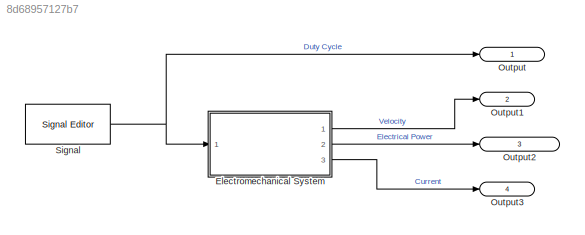
MODEL slx_8d68957127b7
KIND model
CONFIG AbsTol = auto
CONFIG EnableMultiTasking = off
CONFIG FixedStep = auto
CONFIG MaxStep = auto
CONFIG MinStep = auto
CONFIG RelTol = 1e-6
CONFIG SampleTimeConstraint = Unconstrained
CONFIG SolverName = VariableStepAuto
CONFIG StartTime = 0.0
CONFIG StopTime = 10.0
WORKSPACE source: external: MAT-File  (data not in archive)
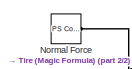
[diagram: Electromechanical System - part 1/2, top right region]
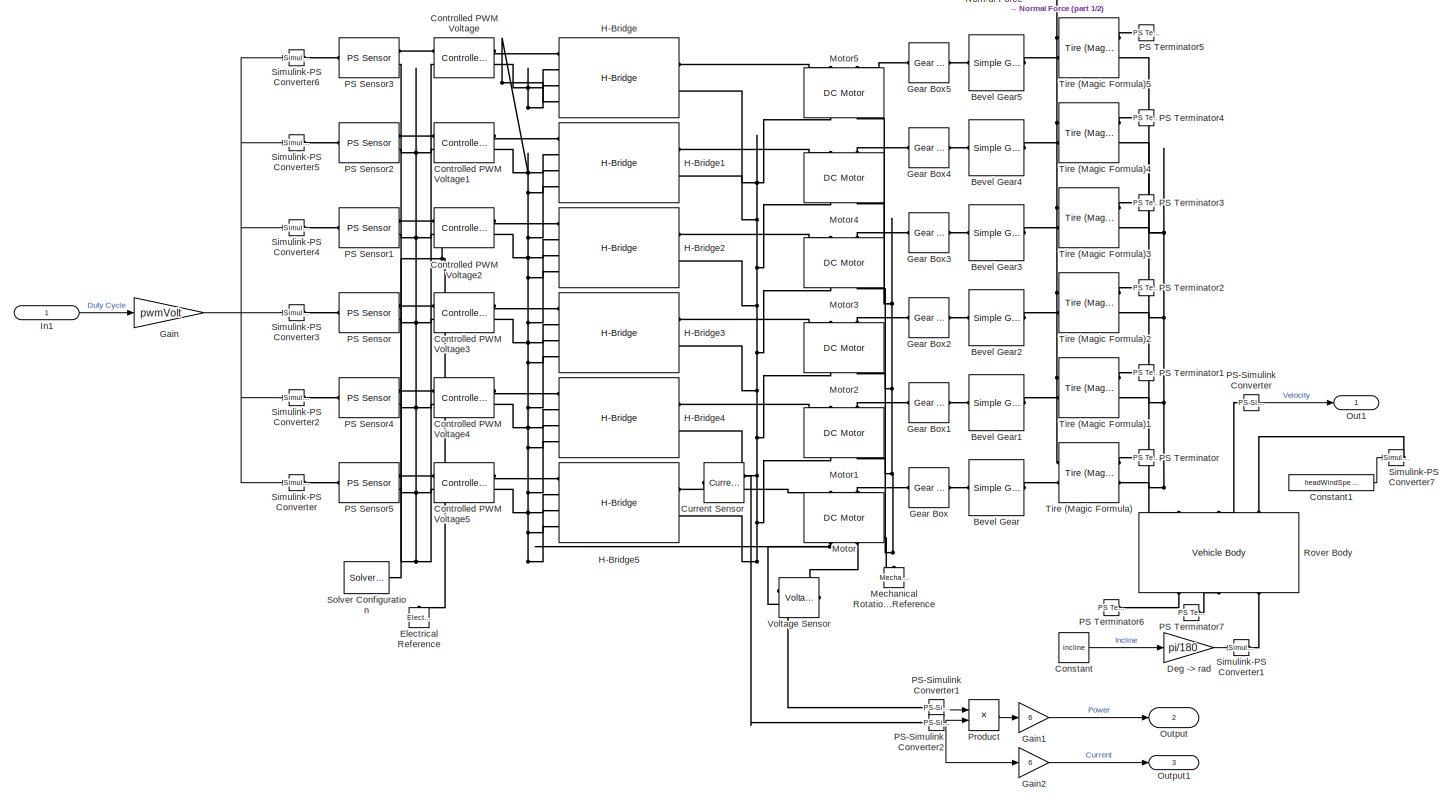
[diagram: Electromechanical System - part 2/2, most of the canvas]
BLOCK [SubSystem] Electromechanical System
  Ports = [1, 3]
  RequestExecContextInheritance = off
BLOCK [Reference] Electromechanical System/ Gear Box  REF=fl_lib/Mechanical/Mechanisms/Gear Box
  Ports = [0, 0, 0, 0, 0, 1, 1]
  SourceBlock = fl_lib/Mechanical/Mechanisms/Gear Box
  SourceProductBaseCode = SS
  SourceType = Gear Box
BLOCK [Reference] Electromechanical System/ Gear Box1  REF=fl_lib/Mechanical/Mechanisms/Gear Box
  Ports = [0, 0, 0, 0, 0, 1, 1]
  SourceBlock = fl_lib/Mechanical/Mechanisms/Gear Box
  SourceProductBaseCode = SS
  SourceType = Gear Box
BLOCK [Reference] Electromechanical System/ Gear Box2  REF=fl_lib/Mechanical/Mechanisms/Gear Box
  Ports = [0, 0, 0, 0, 0, 1, 1]
  SourceBlock = fl_lib/Mechanical/Mechanisms/Gear Box
  SourceProductBaseCode = SS
  SourceType = Gear Box
BLOCK [Reference] Electromechanical System/ Gear Box3  REF=fl_lib/Mechanical/Mechanisms/Gear Box
  Ports = [0, 0, 0, 0, 0, 1, 1]
  SourceBlock = fl_lib/Mechanical/Mechanisms/Gear Box
  SourceProductBaseCode = SS
  SourceType = Gear Box
BLOCK [Reference] Electromechanical System/ Gear Box4  REF=fl_lib/Mechanical/Mechanisms/Gear Box
  Ports = [0, 0, 0, 0, 0, 1, 1]
  SourceBlock = fl_lib/Mechanical/Mechanisms/Gear Box
  SourceProductBaseCode = SS
  SourceType = Gear Box
BLOCK [Reference] Electromechanical System/ Gear Box5  REF=fl_lib/Mechanical/Mechanisms/Gear Box
  Ports = [0, 0, 0, 0, 0, 1, 1]
  SourceBlock = fl_lib/Mechanical/Mechanisms/Gear Box
  SourceProductBaseCode = SS
  SourceType = Gear Box
BLOCK [Reference] Electromechanical System/Bevel Gear  REF=sdl_lib/Gears/Simple Gear
  Ports = [0, 0, 0, 0, 0, 1, 1]
  SourceBlock = sdl_lib/Gears/Simple Gear
  SourceProductBaseCode = LD
  SourceType = Simple Gear
BLOCK [Reference] Electromechanical System/Bevel Gear1  REF=sdl_lib/Gears/Simple Gear
  Ports = [0, 0, 0, 0, 0, 1, 1]
  SourceBlock = sdl_lib/Gears/Simple Gear
  SourceProductBaseCode = LD
  SourceType = Simple Gear
BLOCK [Reference] Electromechanical System/Bevel Gear2  REF=sdl_lib/Gears/Simple Gear
  Ports = [0, 0, 0, 0, 0, 1, 1]
  SourceBlock = sdl_lib/Gears/Simple Gear
  SourceProductBaseCode = LD
  SourceType = Simple Gear
BLOCK [Reference] Electromechanical System/Bevel Gear3  REF=sdl_lib/Gears/Simple Gear
  Ports = [0, 0, 0, 0, 0, 1, 1]
  SourceBlock = sdl_lib/Gears/Simple Gear
  SourceProductBaseCode = LD
  SourceType = Simple Gear
BLOCK [Reference] Electromechanical System/Bevel Gear4  REF=sdl_lib/Gears/Simple Gear
  Ports = [0, 0, 0, 0, 0, 1, 1]
  SourceBlock = sdl_lib/Gears/Simple Gear
  SourceProductBaseCode = LD
  SourceType = Simple Gear
BLOCK [Reference] Electromechanical System/Bevel Gear5  REF=sdl_lib/Gears/Simple Gear
  Ports = [0, 0, 0, 0, 0, 1, 1]
  SourceBlock = sdl_lib/Gears/Simple Gear
  SourceProductBaseCode = LD
  SourceType = Simple Gear
BLOCK [Constant] Electromechanical System/Constant
  Value = incline
BLOCK [Constant] Electromechanical System/Constant1
  Value = headWindSpeed
BLOCK [Reference] Electromechanical System/Controlled PWM Voltage  REF=ee_lib/Integrated Circuits/Controlled PWM
Voltage
  Ports = [0, 0, 0, 0, 0, 2, 2]
  SourceBlock = ee_lib/Integrated Circuits/Controlled PWM\nVoltage
  SourceProductBaseCode = PS
  SourceType = Controlled PWM\nVoltage
BLOCK [Reference] Electromechanical System/Controlled PWM Voltage1  REF=ee_lib/Integrated Circuits/Controlled PWM
Voltage
  Ports = [0, 0, 0, 0, 0, 2, 2]
  SourceBlock = ee_lib/Integrated Circuits/Controlled PWM\nVoltage
  SourceProductBaseCode = PS
  SourceType = Controlled PWM\nVoltage
BLOCK [Reference] Electromechanical System/Controlled PWM Voltage2  REF=ee_lib/Integrated Circuits/Controlled PWM
Voltage
  Ports = [0, 0, 0, 0, 0, 2, 2]
  SourceBlock = ee_lib/Integrated Circuits/Controlled PWM\nVoltage
  SourceProductBaseCode = PS
  SourceType = Controlled PWM\nVoltage
BLOCK [Reference] Electromechanical System/Controlled PWM Voltage3  REF=ee_lib/Integrated Circuits/Controlled PWM
Voltage
  Ports = [0, 0, 0, 0, 0, 2, 2]
  SourceBlock = ee_lib/Integrated Circuits/Controlled PWM\nVoltage
  SourceProductBaseCode = PS
  SourceType = Controlled PWM\nVoltage
BLOCK [Reference] Electromechanical System/Controlled PWM Voltage4  REF=ee_lib/Integrated Circuits/Controlled PWM
Voltage
  Ports = [0, 0, 0, 0, 0, 2, 2]
  SourceBlock = ee_lib/Integrated Circuits/Controlled PWM\nVoltage
  SourceProductBaseCode = PS
  SourceType = Controlled PWM\nVoltage
BLOCK [Reference] Electromechanical System/Controlled PWM Voltage5  REF=ee_lib/Integrated Circuits/Controlled PWM
Voltage
  Ports = [0, 0, 0, 0, 0, 2, 2]
  SourceBlock = ee_lib/Integrated Circuits/Controlled PWM\nVoltage
  SourceProductBaseCode = PS
  SourceType = Controlled PWM\nVoltage
BLOCK [Reference] Electromechanical System/Current Sensor  REF=fl_lib/Electrical/Electrical Sensors/Current Sensor
  Ports = [0, 0, 0, 0, 0, 1, 2]
  SourceBlock = fl_lib/Electrical/Electrical Sensors/Current Sensor
  SourceProductBaseCode = SS
  SourceType = Current Sensor
BLOCK [Gain] Electromechanical System/Deg -> rad
  Gain = pi/180
BLOCK [Reference] Electromechanical System/Electrical Reference  REF=fl_lib/Electrical/Electrical Elements/Electrical Reference
  NameLocation = right
  Ports = [0, 0, 0, 0, 0, 1]
  SourceBlock = fl_lib/Electrical/Electrical Elements/Electrical Reference
  SourceProductBaseCode = SS
  SourceType = Electrical Reference
BLOCK [Gain] Electromechanical System/Gain
  Gain = pwmVolt
BLOCK [Gain] Electromechanical System/Gain1
  Gain = 6
BLOCK [Gain] Electromechanical System/Gain2
  Gain = 6
BLOCK [Reference] Electromechanical System/H-Bridge  REF=ee_lib/Semiconductors &
Converters/Converters/H-Bridge
  Ports = [0, 0, 0, 0, 0, 4, 2]
  SourceBlock = ee_lib/Semiconductors &\nConverters/Converters/H-Bridge
  SourceProductBaseCode = PS
  SourceType = H-Bridge
BLOCK [Reference] Electromechanical System/H-Bridge1  REF=ee_lib/Semiconductors &
Converters/Converters/H-Bridge
  Ports = [0, 0, 0, 0, 0, 4, 2]
  SourceBlock = ee_lib/Semiconductors &\nConverters/Converters/H-Bridge
  SourceProductBaseCode = PS
  SourceType = H-Bridge
BLOCK [Reference] Electromechanical System/H-Bridge2  REF=ee_lib/Semiconductors &
Converters/Converters/H-Bridge
  Ports = [0, 0, 0, 0, 0, 4, 2]
  SourceBlock = ee_lib/Semiconductors &\nConverters/Converters/H-Bridge
  SourceProductBaseCode = PS
  SourceType = H-Bridge
BLOCK [Reference] Electromechanical System/H-Bridge3  REF=ee_lib/Semiconductors &
Converters/Converters/H-Bridge
  Ports = [0, 0, 0, 0, 0, 4, 2]
  SourceBlock = ee_lib/Semiconductors &\nConverters/Converters/H-Bridge
  SourceProductBaseCode = PS
  SourceType = H-Bridge
BLOCK [Reference] Electromechanical System/H-Bridge4  REF=ee_lib/Semiconductors &
Converters/Converters/H-Bridge
  Ports = [0, 0, 0, 0, 0, 4, 2]
  SourceBlock = ee_lib/Semiconductors &\nConverters/Converters/H-Bridge
  SourceProductBaseCode = PS
  SourceType = H-Bridge
BLOCK [Reference] Electromechanical System/H-Bridge5  REF=ee_lib/Semiconductors &
Converters/Converters/H-Bridge
  Ports = [0, 0, 0, 0, 0, 4, 2]
  SourceBlock = ee_lib/Semiconductors &\nConverters/Converters/H-Bridge
  SourceProductBaseCode = PS
  SourceType = H-Bridge
BLOCK [Inport] Electromechanical System/In1
  IconDisplay = Signal name
BLOCK [Reference] Electromechanical System/Mechanical Rotational Reference  REF=fl_lib/Mechanical/Rotational Elements/Mechanical
Rotational Reference
  NameLocation = right
  Ports = [0, 0, 0, 0, 0, 1]
  SourceBlock = fl_lib/Mechanical/Rotational Elements/Mechanical\nRotational Reference
  SourceProductBaseCode = SS
  SourceType = Mechanical\nRotational Reference
BLOCK [Reference] Electromechanical System/Motor  REF=ee_lib/Electromechanical/Brushed Motors/DC Motor
  NameLocation = left
  Ports = [0, 0, 0, 0, 0, 2, 2]
  SourceBlock = ee_lib/Electromechanical/Brushed Motors/DC Motor
  SourceProductBaseCode = PS
  SourceType = DC Motor
BLOCK [Reference] Electromechanical System/Motor1  REF=ee_lib/Electromechanical/Brushed Motors/DC Motor
  NameLocation = left
  Ports = [0, 0, 0, 0, 0, 2, 2]
  SourceBlock = ee_lib/Electromechanical/Brushed Motors/DC Motor
  SourceProductBaseCode = PS
  SourceType = DC Motor
BLOCK [Reference] Electromechanical System/Motor2  REF=ee_lib/Electromechanical/Brushed Motors/DC Motor
  NameLocation = left
  Ports = [0, 0, 0, 0, 0, 2, 2]
  SourceBlock = ee_lib/Electromechanical/Brushed Motors/DC Motor
  SourceProductBaseCode = PS
  SourceType = DC Motor
BLOCK [Reference] Electromechanical System/Motor3  REF=ee_lib/Electromechanical/Brushed Motors/DC Motor
  NameLocation = left
  Ports = [0, 0, 0, 0, 0, 2, 2]
  SourceBlock = ee_lib/Electromechanical/Brushed Motors/DC Motor
  SourceProductBaseCode = PS
  SourceType = DC Motor
BLOCK [Reference] Electromechanical System/Motor4  REF=ee_lib/Electromechanical/Brushed Motors/DC Motor
  NameLocation = left
  Ports = [0, 0, 0, 0, 0, 2, 2]
  SourceBlock = ee_lib/Electromechanical/Brushed Motors/DC Motor
  SourceProductBaseCode = PS
  SourceType = DC Motor
BLOCK [Reference] Electromechanical System/Motor5  REF=ee_lib/Electromechanical/Brushed Motors/DC Motor
  NameLocation = left
  Ports = [0, 0, 0, 0, 0, 2, 2]
  SourceBlock = ee_lib/Electromechanical/Brushed Motors/DC Motor
  SourceProductBaseCode = PS
  SourceType = DC Motor
BLOCK [Reference] Electromechanical System/Normal Force  REF=fl_lib/Physical Signals/Sources/PS Constant
  Ports = [0, 0, 0, 0, 0, 0, 1]
  SourceBlock = fl_lib/Physical Signals/Sources/PS Constant
  SourceProductBaseCode = SS
  SourceType = PS Constant
BLOCK [Outport] Electromechanical System/Out1
  IconDisplay = Signal name
BLOCK [Outport] Electromechanical System/Output
  IconDisplay = Signal name
  Port = 2
BLOCK [Outport] Electromechanical System/Output1
  IconDisplay = Signal name
  Port = 3
BLOCK [Reference] Electromechanical System/PS Sensor  REF=ee_lib/Sensors &
Transducers/PS Sensor
  Ports = [0, 0, 0, 0, 0, 1, 2]
  SourceBlock = ee_lib/Sensors &\nTransducers/PS Sensor
  SourceProductBaseCode = PS
  SourceType = PS Sensor
BLOCK [Reference] Electromechanical System/PS Sensor1  REF=ee_lib/Sensors &
Transducers/PS Sensor
  Ports = [0, 0, 0, 0, 0, 1, 2]
  SourceBlock = ee_lib/Sensors &\nTransducers/PS Sensor
  SourceProductBaseCode = PS
  SourceType = PS Sensor
BLOCK [Reference] Electromechanical System/PS Sensor2  REF=ee_lib/Sensors &
Transducers/PS Sensor
  Ports = [0, 0, 0, 0, 0, 1, 2]
  SourceBlock = ee_lib/Sensors &\nTransducers/PS Sensor
  SourceProductBaseCode = PS
  SourceType = PS Sensor
BLOCK [Reference] Electromechanical System/PS Sensor3  REF=ee_lib/Sensors &
Transducers/PS Sensor
  Ports = [0, 0, 0, 0, 0, 1, 2]
  SourceBlock = ee_lib/Sensors &\nTransducers/PS Sensor
  SourceProductBaseCode = PS
  SourceType = PS Sensor
BLOCK [Reference] Electromechanical System/PS Sensor4  REF=ee_lib/Sensors &
Transducers/PS Sensor
  Ports = [0, 0, 0, 0, 0, 1, 2]
  SourceBlock = ee_lib/Sensors &\nTransducers/PS Sensor
  SourceProductBaseCode = PS
  SourceType = PS Sensor
BLOCK [Reference] Electromechanical System/PS Sensor5  REF=ee_lib/Sensors &
Transducers/PS Sensor
  Ports = [0, 0, 0, 0, 0, 1, 2]
  SourceBlock = ee_lib/Sensors &\nTransducers/PS Sensor
  SourceProductBaseCode = PS
  SourceType = PS Sensor
BLOCK [Reference] Electromechanical System/PS Terminator  REF=fl_lib/Physical Signals/Sinks/PS Terminator
  Ports = [0, 0, 0, 0, 0, 1]
  SourceBlock = fl_lib/Physical Signals/Sinks/PS Terminator
  SourceProductBaseCode = SS
  SourceType = PS Terminator
BLOCK [Reference] Electromechanical System/PS Terminator1  REF=fl_lib/Physical Signals/Sinks/PS Terminator
  Ports = [0, 0, 0, 0, 0, 1]
  SourceBlock = fl_lib/Physical Signals/Sinks/PS Terminator
  SourceProductBaseCode = SS
  SourceType = PS Terminator
BLOCK [Reference] Electromechanical System/PS Terminator2  REF=fl_lib/Physical Signals/Sinks/PS Terminator
  Ports = [0, 0, 0, 0, 0, 1]
  SourceBlock = fl_lib/Physical Signals/Sinks/PS Terminator
  SourceProductBaseCode = SS
  SourceType = PS Terminator
BLOCK [Reference] Electromechanical System/PS Terminator3  REF=fl_lib/Physical Signals/Sinks/PS Terminator
  Ports = [0, 0, 0, 0, 0, 1]
  SourceBlock = fl_lib/Physical Signals/Sinks/PS Terminator
  SourceProductBaseCode = SS
  SourceType = PS Terminator
BLOCK [Reference] Electromechanical System/PS Terminator4  REF=fl_lib/Physical Signals/Sinks/PS Terminator
  Ports = [0, 0, 0, 0, 0, 1]
  SourceBlock = fl_lib/Physical Signals/Sinks/PS Terminator
  SourceProductBaseCode = SS
  SourceType = PS Terminator
BLOCK [Reference] Electromechanical System/PS Terminator5  REF=fl_lib/Physical Signals/Sinks/PS Terminator
  Ports = [0, 0, 0, 0, 0, 1]
  SourceBlock = fl_lib/Physical Signals/Sinks/PS Terminator
  SourceProductBaseCode = SS
  SourceType = PS Terminator
BLOCK [Reference] Electromechanical System/PS Terminator6  REF=fl_lib/Physical Signals/Sinks/PS Terminator
  Ports = [0, 0, 0, 0, 0, 1]
  SourceBlock = fl_lib/Physical Signals/Sinks/PS Terminator
  SourceProductBaseCode = SS
  SourceType = PS Terminator
BLOCK [Reference] Electromechanical System/PS Terminator7  REF=fl_lib/Physical Signals/Sinks/PS Terminator
  Ports = [0, 0, 0, 0, 0, 1]
  SourceBlock = fl_lib/Physical Signals/Sinks/PS Terminator
  SourceProductBaseCode = SS
  SourceType = PS Terminator
BLOCK [Reference] Electromechanical System/PS-Simulink Converter  REF=nesl_utility/PS-Simulink
Converter
  Ports = [0, 1, 0, 0, 0, 1]
  SourceBlock = nesl_utility/PS-Simulink\nConverter
  SourceProductBaseCode = SS
  SourceType = PS-Simulink\nConverter
BLOCK [Reference] Electromechanical System/PS-Simulink Converter1  REF=nesl_utility/PS-Simulink
Converter
  Ports = [0, 1, 0, 0, 0, 1]
  SourceBlock = nesl_utility/PS-Simulink\nConverter
  SourceProductBaseCode = SS
  SourceType = PS-Simulink\nConverter
BLOCK [Reference] Electromechanical System/PS-Simulink Converter2  REF=nesl_utility/PS-Simulink
Converter
  Ports = [0, 1, 0, 0, 0, 1]
  SourceBlock = nesl_utility/PS-Simulink\nConverter
  SourceProductBaseCode = SS
  SourceType = PS-Simulink\nConverter
BLOCK [Product] Electromechanical System/Product
  Ports = [2, 1]
BLOCK [Reference] Electromechanical System/Rover Body  REF=sdl_lib/Tires & Vehicles/Vehicle Body
  NameLocation = right
  Ports = [0, 0, 0, 0, 0, 3, 3]
  SourceBlock = sdl_lib/Tires & Vehicles/Vehicle Body
  SourceProductBaseCode = LD
  SourceType = Vehicle Body
BLOCK [Reference] Electromechanical System/Simulink-PS Converter  REF=nesl_utility/Simulink-PS
Converter
  Ports = [1, 0, 0, 0, 0, 0, 1]
  SourceBlock = nesl_utility/Simulink-PS\nConverter
  SourceProductBaseCode = SS
  SourceType = Simulink-PS\nConverter
BLOCK [Reference] Electromechanical System/Simulink-PS Converter1  REF=nesl_utility/Simulink-PS
Converter
  Ports = [1, 0, 0, 0, 0, 0, 1]
  SourceBlock = nesl_utility/Simulink-PS\nConverter
  SourceProductBaseCode = SS
  SourceType = Simulink-PS\nConverter
BLOCK [Reference] Electromechanical System/Simulink-PS Converter2  REF=nesl_utility/Simulink-PS
Converter
  Ports = [1, 0, 0, 0, 0, 0, 1]
  SourceBlock = nesl_utility/Simulink-PS\nConverter
  SourceProductBaseCode = SS
  SourceType = Simulink-PS\nConverter
BLOCK [Reference] Electromechanical System/Simulink-PS Converter3  REF=nesl_utility/Simulink-PS
Converter
  Ports = [1, 0, 0, 0, 0, 0, 1]
  SourceBlock = nesl_utility/Simulink-PS\nConverter
  SourceProductBaseCode = SS
  SourceType = Simulink-PS\nConverter
BLOCK [Reference] Electromechanical System/Simulink-PS Converter4  REF=nesl_utility/Simulink-PS
Converter
  Ports = [1, 0, 0, 0, 0, 0, 1]
  SourceBlock = nesl_utility/Simulink-PS\nConverter
  SourceProductBaseCode = SS
  SourceType = Simulink-PS\nConverter
BLOCK [Reference] Electromechanical System/Simulink-PS Converter5  REF=nesl_utility/Simulink-PS
Converter
  Ports = [1, 0, 0, 0, 0, 0, 1]
  SourceBlock = nesl_utility/Simulink-PS\nConverter
  SourceProductBaseCode = SS
  SourceType = Simulink-PS\nConverter
BLOCK [Reference] Electromechanical System/Simulink-PS Converter6  REF=nesl_utility/Simulink-PS
Converter
  Ports = [1, 0, 0, 0, 0, 0, 1]
  SourceBlock = nesl_utility/Simulink-PS\nConverter
  SourceProductBaseCode = SS
  SourceType = Simulink-PS\nConverter
BLOCK [Reference] Electromechanical System/Simulink-PS Converter7  REF=nesl_utility/Simulink-PS
Converter
  Ports = [1, 0, 0, 0, 0, 0, 1]
  SourceBlock = nesl_utility/Simulink-PS\nConverter
  SourceProductBaseCode = SS
  SourceType = Simulink-PS\nConverter
BLOCK [Reference] Electromechanical System/Solver Configuration  REF=nesl_utility/Solver
Configuration
  Ports = [0, 0, 0, 0, 0, 0, 1]
  SourceBlock = nesl_utility/Solver\nConfiguration
  SourceProductBaseCode = SS
  SourceType = Solver\nConfiguration
BLOCK [Reference] Electromechanical System/Tire (Magic Formula)  REF=sdl_lib/Tires & Vehicles/Tire (Magic Formula)
  Ports = [0, 0, 0, 0, 0, 2, 2]
  SourceBlock = sdl_lib/Tires & Vehicles/Tire (Magic Formula)
  SourceProductBaseCode = LD
  SourceType = Tire (Magic Formula)
BLOCK [Reference] Electromechanical System/Tire (Magic Formula)1  REF=sdl_lib/Tires & Vehicles/Tire (Magic Formula)
  Ports = [0, 0, 0, 0, 0, 2, 2]
  SourceBlock = sdl_lib/Tires & Vehicles/Tire (Magic Formula)
  SourceProductBaseCode = LD
  SourceType = Tire (Magic Formula)
BLOCK [Reference] Electromechanical System/Tire (Magic Formula)2  REF=sdl_lib/Tires & Vehicles/Tire (Magic Formula)
  Ports = [0, 0, 0, 0, 0, 2, 2]
  SourceBlock = sdl_lib/Tires & Vehicles/Tire (Magic Formula)
  SourceProductBaseCode = LD
  SourceType = Tire (Magic Formula)
BLOCK [Reference] Electromechanical System/Tire (Magic Formula)3  REF=sdl_lib/Tires & Vehicles/Tire (Magic Formula)
  Ports = [0, 0, 0, 0, 0, 2, 2]
  SourceBlock = sdl_lib/Tires & Vehicles/Tire (Magic Formula)
  SourceProductBaseCode = LD
  SourceType = Tire (Magic Formula)
BLOCK [Reference] Electromechanical System/Tire (Magic Formula)4  REF=sdl_lib/Tires & Vehicles/Tire (Magic Formula)
  Ports = [0, 0, 0, 0, 0, 2, 2]
  SourceBlock = sdl_lib/Tires & Vehicles/Tire (Magic Formula)
  SourceProductBaseCode = LD
  SourceType = Tire (Magic Formula)
BLOCK [Reference] Electromechanical System/Tire (Magic Formula)5  REF=sdl_lib/Tires & Vehicles/Tire (Magic Formula)
  Ports = [0, 0, 0, 0, 0, 2, 2]
  SourceBlock = sdl_lib/Tires & Vehicles/Tire (Magic Formula)
  SourceProductBaseCode = LD
  SourceType = Tire (Magic Formula)
BLOCK [Reference] Electromechanical System/Voltage Sensor  REF=fl_lib/Electrical/Electrical Sensors/Voltage Sensor
  NameLocation = top
  Ports = [0, 0, 0, 0, 0, 1, 2]
  SourceBlock = fl_lib/Electrical/Electrical Sensors/Voltage Sensor
  SourceProductBaseCode = SS
  SourceType = Voltage Sensor
BLOCK [Outport] Output
  IconDisplay = Signal name
BLOCK [Outport] Output1
  IconDisplay = Signal name
  Port = 2
BLOCK [Outport] Output2
  IconDisplay = Signal name
  Port = 3
BLOCK [Outport] Output3
  IconDisplay = Signal name
  Port = 4
BLOCK [Reference] Signal  REF=SignalEditorBlockLib/Signal Editor
  Ports = [0, 1]
  SourceBlock = SignalEditorBlockLib/Signal Editor
  SourceProductBaseCode = SL
  SourceType = SignalEditor
  UserDataPersistent = on
LINE Electromechanical System/Constant1:1 -> Electromechanical System/Simulink-PS Converter7:1
LINE Electromechanical System/Constant:1 -> Electromechanical System/Deg -> rad:1
LINE Electromechanical System/Deg -> rad:1 -> Electromechanical System/Simulink-PS Converter1:1
LINE Electromechanical System/Gain1:1 -> Electromechanical System/Output:1
LINE Electromechanical System/Gain2:1 -> Electromechanical System/Output1:1
NET Electromechanical System/Gain:1 -> Electromechanical System/Simulink-PS Converter2:1, Electromechanical System/Simulink-PS Converter3:1, Electromechanical System/Simulink-PS Converter4:1, Electromechanical System/Simulink-PS Converter5:1, Electromechanical System/Simulink-PS Converter6:1, Electromechanical System/Simulink-PS Converter:1
LINE Electromechanical System/In1:1 -> Electromechanical System/Gain:1
LINE Electromechanical System/PS-Simulink Converter1:1 -> Electromechanical System/Product:1
NET Electromechanical System/PS-Simulink Converter2:1 -> Electromechanical System/Gain2:1, Electromechanical System/Product:2
LINE Electromechanical System/PS-Simulink Converter:1 -> Electromechanical System/Out1:1
LINE Electromechanical System/Product:1 -> Electromechanical System/Gain1:1
LINE Electromechanical System:1 -> Output1:1
LINE Electromechanical System:2 -> Output2:1
LINE Electromechanical System:3 -> Output3:1
NET Signal:1 -> Electromechanical System:1, Output:1
PLINE Electromechanical System/ Gear Box1:LConn1 -- Electromechanical System/Motor1:LConn2
PLINE Electromechanical System/ Gear Box1:RConn1 -- Electromechanical System/Bevel Gear1:LConn1
PLINE Electromechanical System/ Gear Box2:LConn1 -- Electromechanical System/Motor2:LConn2
PLINE Electromechanical System/ Gear Box2:RConn1 -- Electromechanical System/Bevel Gear2:LConn1
PLINE Electromechanical System/ Gear Box3:LConn1 -- Electromechanical System/Motor3:LConn2
PLINE Electromechanical System/ Gear Box3:RConn1 -- Electromechanical System/Bevel Gear3:LConn1
PLINE Electromechanical System/ Gear Box4:LConn1 -- Electromechanical System/Motor4:LConn2
PLINE Electromechanical System/ Gear Box4:RConn1 -- Electromechanical System/Bevel Gear4:LConn1
PLINE Electromechanical System/ Gear Box5:LConn1 -- Electromechanical System/Motor5:LConn2
PLINE Electromechanical System/ Gear Box5:RConn1 -- Electromechanical System/Bevel Gear5:LConn1
PLINE Electromechanical System/ Gear Box:LConn1 -- Electromechanical System/Motor:LConn2
PLINE Electromechanical System/ Gear Box:RConn1 -- Electromechanical System/Bevel Gear:LConn1
PLINE Electromechanical System/Bevel Gear1:RConn1 -- Electromechanical System/Tire (Magic Formula)1:LConn2
PLINE Electromechanical System/Bevel Gear2:RConn1 -- Electromechanical System/Tire (Magic Formula)2:LConn2
PLINE Electromechanical System/Bevel Gear3:RConn1 -- Electromechanical System/Tire (Magic Formula)3:LConn2
PLINE Electromechanical System/Bevel Gear4:RConn1 -- Electromechanical System/Tire (Magic Formula)4:LConn2
PLINE Electromechanical System/Bevel Gear5:RConn1 -- Electromechanical System/Tire (Magic Formula)5:LConn2
PLINE Electromechanical System/Bevel Gear:RConn1 -- Electromechanical System/Tire (Magic Formula):LConn2
PLINE Electromechanical System/Controlled PWM Voltage1:LConn1 -- Electromechanical System/PS Sensor2:RConn1
PNET net1: Electromechanical System/Controlled PWM Voltage1:LConn2 -- Electromechanical System/Controlled PWM Voltage1:RConn2 -- Electromechanical System/Controlled PWM Voltage2:LConn2 -- Electromechanical System/Controlled PWM Voltage2:RConn2 -- Electromechanical System/Controlled PWM Voltage3:LConn2 -- Electromechanical System/Controlled PWM Voltage3:RConn2 -- Electromechanical System/Controlled PWM Voltage4:LConn2 -- Electromechanical System/Controlled PWM Voltage4:RConn2 -- Electromechanical System/Controlled PWM Voltage5:LConn2 -- Electromechanical System/Controlled PWM Voltage5:RConn2 -- Electromechanical System/Controlled PWM Voltage:LConn2 -- Electromechanical System/Controlled PWM Voltage:RConn2 -- Electromechanical System/Electrical Reference:LConn1 -- Electromechanical System/H-Bridge1:LConn2 -- Electromechanical System/H-Bridge1:LConn3 -- Electromechanical System/H-Bridge1:LConn4 -- Electromechanical System/H-Bridge1:RConn2 -- Electromechanical System/H-Bridge2:LConn2 -- Electromechanical System/H-Bridge2:LConn3 -- Electromechanical System/H-Bridge2:LConn4 -- Electromechanical System/H-Bridge2:RConn2 -- Electromechanical System/H-Bridge3:LConn2 -- Electromechanical System/H-Bridge3:LConn3 -- Electromechanical System/H-Bridge3:LConn4 -- Electromechanical System/H-Bridge3:RConn2 -- Electromechanical System/H-Bridge4:LConn2 -- Electromechanical System/H-Bridge4:LConn3 -- Electromechanical System/H-Bridge4:LConn4 -- Electromechanical System/H-Bridge4:RConn2 -- Electromechanical System/H-Bridge5:LConn2 -- Electromechanical System/H-Bridge5:LConn3 -- Electromechanical System/H-Bridge5:LConn4 -- Electromechanical System/H-Bridge5:RConn2 -- Electromechanical System/H-Bridge:LConn2 -- Electromechanical System/H-Bridge:LConn3 -- Electromechanical System/H-Bridge:LConn4 -- Electromechanical System/H-Bridge:RConn2 -- Electromechanical System/Motor1:RConn1 -- Electromechanical System/Motor2:RConn1 -- Electromechanical System/Motor3:RConn1 -- Electromechanical System/Motor4:RConn1 -- Electromechanical System/Motor5:RConn1 -- Electromechanical System/Motor:RConn1 -- Electromechanical System/PS Sensor1:RConn2 -- Electromechanical System/PS Sensor2:RConn2 -- Electromechanical System/PS Sensor3:RConn2 -- Electromechanical System/PS Sensor4:RConn2 -- Electromechanical System/PS Sensor5:RConn2 -- Electromechanical System/PS Sensor:RConn2 -- Electromechanical System/Solver Configuration:RConn1 -- Electromechanical System/Voltage Sensor:RConn2
PLINE Electromechanical System/Controlled PWM Voltage1:RConn1 -- Electromechanical System/H-Bridge1:LConn1
PLINE Electromechanical System/Controlled PWM Voltage2:LConn1 -- Electromechanical System/PS Sensor1:RConn1
PLINE Electromechanical System/Controlled PWM Voltage2:RConn1 -- Electromechanical System/H-Bridge2:LConn1
PLINE Electromechanical System/Controlled PWM Voltage3:LConn1 -- Electromechanical System/PS Sensor:RConn1
PLINE Electromechanical System/Controlled PWM Voltage3:RConn1 -- Electromechanical System/H-Bridge3:LConn1
PLINE Electromechanical System/Controlled PWM Voltage4:LConn1 -- Electromechanical System/PS Sensor4:RConn1
PLINE Electromechanical System/Controlled PWM Voltage4:RConn1 -- Electromechanical System/H-Bridge4:LConn1
PLINE Electromechanical System/Controlled PWM Voltage5:LConn1 -- Electromechanical System/PS Sensor5:RConn1
PLINE Electromechanical System/Controlled PWM Voltage5:RConn1 -- Electromechanical System/H-Bridge5:LConn1
PLINE Electromechanical System/Controlled PWM Voltage:LConn1 -- Electromechanical System/PS Sensor3:RConn1
PLINE Electromechanical System/Controlled PWM Voltage:RConn1 -- Electromechanical System/H-Bridge:LConn1
PLINE Electromechanical System/Current Sensor:LConn1 -- Electromechanical System/H-Bridge5:RConn1
PLINE Electromechanical System/Current Sensor:RConn1 -- Electromechanical System/PS-Simulink Converter2:LConn1
PNET net2: Electromechanical System/Current Sensor:RConn2 -- Electromechanical System/Motor:LConn1 -- Electromechanical System/Voltage Sensor:LConn1
PLINE Electromechanical System/H-Bridge1:RConn1 -- Electromechanical System/Motor4:LConn1
PLINE Electromechanical System/H-Bridge2:RConn1 -- Electromechanical System/Motor3:LConn1
PLINE Electromechanical System/H-Bridge3:RConn1 -- Electromechanical System/Motor2:LConn1
PLINE Electromechanical System/H-Bridge4:RConn1 -- Electromechanical System/Motor1:LConn1
PLINE Electromechanical System/H-Bridge:RConn1 -- Electromechanical System/Motor5:LConn1
PNET net3: Electromechanical System/Mechanical Rotational Reference:LConn1 -- Electromechanical System/Motor1:RConn2 -- Electromechanical System/Motor2:RConn2 -- Electromechanical System/Motor3:RConn2 -- Electromechanical System/Motor4:RConn2 -- Electromechanical System/Motor5:RConn2 -- Electromechanical System/Motor:RConn2
PNET net4: Electromechanical System/Normal Force:RConn1 -- Electromechanical System/Tire (Magic Formula)1:LConn1 -- Electromechanical System/Tire (Magic Formula)2:LConn1 -- Electromechanical System/Tire (Magic Formula)3:LConn1 -- Electromechanical System/Tire (Magic Formula)4:LConn1 -- Electromechanical System/Tire (Magic Formula)5:LConn1 -- Electromechanical System/Tire (Magic Formula):LConn1
PLINE Electromechanical System/PS Sensor1:LConn1 -- Electromechanical System/Simulink-PS Converter4:RConn1
PLINE Electromechanical System/PS Sensor2:LConn1 -- Electromechanical System/Simulink-PS Converter5:RConn1
PLINE Electromechanical System/PS Sensor3:LConn1 -- Electromechanical System/Simulink-PS Converter6:RConn1
PLINE Electromechanical System/PS Sensor4:LConn1 -- Electromechanical System/Simulink-PS Converter2:RConn1
PLINE Electromechanical System/PS Sensor5:LConn1 -- Electromechanical System/Simulink-PS Converter:RConn1
PLINE Electromechanical System/PS Sensor:LConn1 -- Electromechanical System/Simulink-PS Converter3:RConn1
PLINE Electromechanical System/PS Terminator1:LConn1 -- Electromechanical System/Tire (Magic Formula)1:RConn1
PLINE Electromechanical System/PS Terminator2:LConn1 -- Electromechanical System/Tire (Magic Formula)2:RConn1
PLINE Electromechanical System/PS Terminator3:LConn1 -- Electromechanical System/Tire (Magic Formula)3:RConn1
PLINE Electromechanical System/PS Terminator4:LConn1 -- Electromechanical System/Tire (Magic Formula)4:RConn1
PLINE Electromechanical System/PS Terminator5:LConn1 -- Electromechanical System/Tire (Magic Formula)5:RConn1
PLINE Electromechanical System/PS Terminator6:LConn1 -- Electromechanical System/Rover Body:RConn1
PLINE Electromechanical System/PS Terminator7:LConn1 -- Electromechanical System/Rover Body:RConn2
PLINE Electromechanical System/PS Terminator:LConn1 -- Electromechanical System/Tire (Magic Formula):RConn1
PLINE Electromechanical System/PS-Simulink Converter1:LConn1 -- Electromechanical System/Voltage Sensor:RConn1
PLINE Electromechanical System/PS-Simulink Converter:LConn1 -- Electromechanical System/Rover Body:LConn2
PNET net5: Electromechanical System/Rover Body:LConn1 -- Electromechanical System/Tire (Magic Formula)1:RConn2 -- Electromechanical System/Tire (Magic Formula)2:RConn2 -- Electromechanical System/Tire (Magic Formula)3:RConn2 -- Electromechanical System/Tire (Magic Formula)4:RConn2 -- Electromechanical System/Tire (Magic Formula)5:RConn2 -- Electromechanical System/Tire (Magic Formula):RConn2
PLINE Electromechanical System/Rover Body:LConn3 -- Electromechanical System/Simulink-PS Converter7:RConn1
PLINE Electromechanical System/Rover Body:RConn3 -- Electromechanical System/Simulink-PS Converter1:RConn1
note: NET lines group one-source signal fan-out (src -> all destinations, sorted); 1:1 wires keep LINE; PNET lines group multi-terminal physical nets as a canonical sorted terminal list (undirected conserving connections); 2-terminal nets keep the pairwise PLINE form
